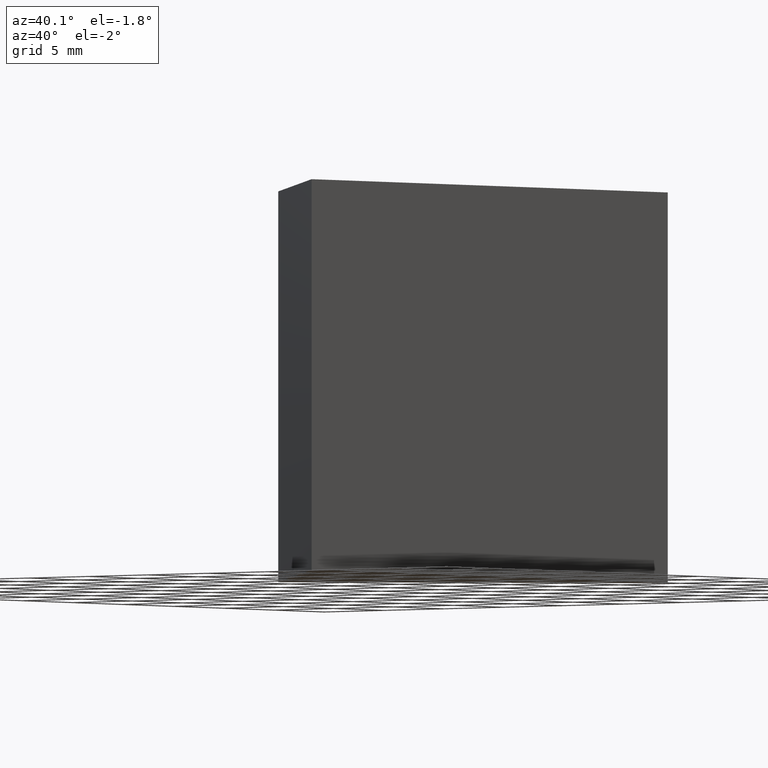
[diagram: clean part render]
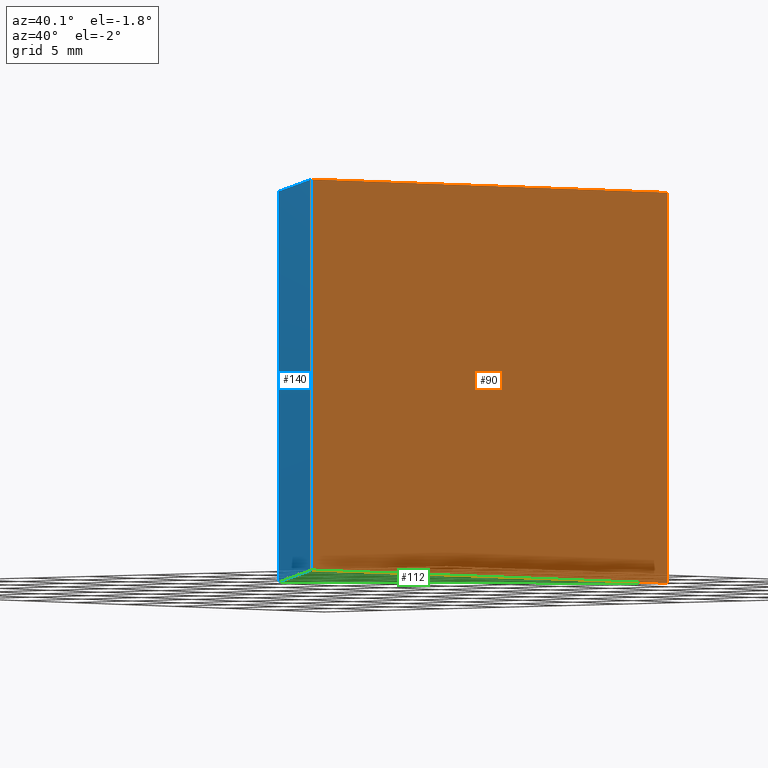
[diagram: same view with three faces highlighted in distinct colors, each labeled with its STEP entity id]
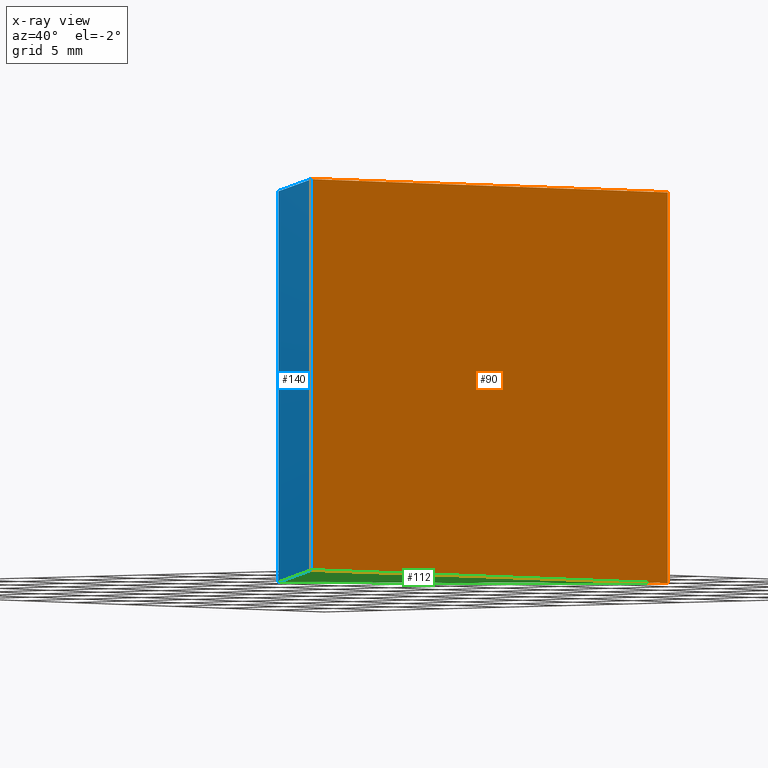
[diagram: x-ray of the same camera — body ghosted, the three highlighted faces saturated]
A machine part, auxiliary view with three faces highlighted in distinct colors.
The next image is the same camera in x-ray (body ghosted, the three faces saturated) — at least one of them is partly hidden behind the body in this view.
Their STEP definitions:

[orange] entity #90 — the highlighted planar face has unit normal (-1, 0, 0).
#9 = ORIENTED_EDGE ( 'NONE', *, *, #116, .F. ) ;
#15 = VECTOR ( 'NONE', #120, 1000.000000000000000 ) ;
#23 = VERTEX_POINT ( 'NONE', #31 ) ;
#26 = LINE ( 'NONE', #72, #113 ) ;
#27 = VERTEX_POINT ( 'NONE', #30 ) ;
#30 = CARTESIAN_POINT ( 'NONE',  ( 295.0610192926383200, 86.55613229383399700, 25.00000000000000000 ) ) ;
#31 = CARTESIAN_POINT ( 'NONE',  ( 295.0610192926383200, 86.55613229383399700, 0.0000000000000000000 ) ) ;
#35 = CARTESIAN_POINT ( 'NONE',  ( 295.0610192926382600, 51.20079323450661200, 25.00000000000000000 ) ) ;
#40 = ORIENTED_EDGE ( 'NONE', *, *, #104, .T. ) ;
#44 = EDGE_CURVE ( 'NONE', #160, #169, #88, .T. ) ;
#51 = LINE ( 'NONE', #85, #15 ) ;
#65 = VECTOR ( 'NONE', #130, 1000.000000000000000 ) ;
#72 = CARTESIAN_POINT ( 'NONE',  ( 295.0610192926383200, 86.55613229383399700, 25.00000000000000000 ) ) ;
#78 = EDGE_CURVE ( 'NONE', #27, #23, #26, .T. ) ;
#85 = CARTESIAN_POINT ( 'NONE',  ( 295.0610192926382600, 51.20079323450661200, 25.00000000000000000 ) ) ;
#86 = ORIENTED_EDGE ( 'NONE', *, *, #44, .T. ) ;
#88 = LINE ( 'NONE', #132, #65 ) ;
#90 = ADVANCED_FACE ( 'NONE', ( #157 ), #96, .F. ) ;
#94 = ORIENTED_EDGE ( 'NONE', *, *, #78, .F. ) ;
#96 = PLANE ( 'NONE',  #162 ) ;
#97 = DIRECTION ( 'NONE',  ( -1.570092458683774900E-015, -1.000000000000000000, 0.0000000000000000000 ) ) ;
#104 = EDGE_CURVE ( 'NONE', #169, #23, #155, .T. ) ;
#106 = CARTESIAN_POINT ( 'NONE',  ( 295.0610192926382600, 51.20079323450661200, 0.0000000000000000000 ) ) ;
#107 = DIRECTION ( 'NONE',  ( 1.570092458683774700E-015, 1.000000000000000000, 0.0000000000000000000 ) ) ;
#113 = VECTOR ( 'NONE', #135, 1000.000000000000000 ) ;
#116 = EDGE_CURVE ( 'NONE', #160, #27, #51, .T. ) ;
#119 = CARTESIAN_POINT ( 'NONE',  ( 295.0610192926382600, 51.20079323450661200, 25.00000000000000000 ) ) ;
#120 = DIRECTION ( 'NONE',  ( 1.570092458683774700E-015, 1.000000000000000000, 0.0000000000000000000 ) ) ;
#122 = EDGE_LOOP ( 'NONE', ( #40, #94, #9, #86 ) ) ;
#123 = CARTESIAN_POINT ( 'NONE',  ( 295.0610192926382600, 51.20079323450661200, 0.0000000000000000000 ) ) ;
#124 = VECTOR ( 'NONE', #107, 1000.000000000000000 ) ;
#130 = DIRECTION ( 'NONE',  ( -0.0000000000000000000, -0.0000000000000000000, -1.000000000000000000 ) ) ;
#132 = CARTESIAN_POINT ( 'NONE',  ( 295.0610192926382600, 51.20079323450661200, 25.00000000000000000 ) ) ;
#135 = DIRECTION ( 'NONE',  ( -0.0000000000000000000, -0.0000000000000000000, -1.000000000000000000 ) ) ;
#155 = LINE ( 'NONE', #106, #124 ) ;
#157 = FACE_OUTER_BOUND ( 'NONE', #122, .T. ) ;
#160 = VERTEX_POINT ( 'NONE', #35 ) ;
#162 = AXIS2_PLACEMENT_3D ( 'NONE', #119, #165, #97 ) ;
#165 = DIRECTION ( 'NONE',  ( -1.000000000000000000, 1.570092458683774900E-015, 0.0000000000000000000 ) ) ;
#169 = VERTEX_POINT ( 'NONE', #123 ) ;

[blue] entity #140 — the highlighted planar face has unit normal (0.7071, 0.7071, -0).
#1 = CARTESIAN_POINT ( 'NONE',  ( 277.3833497629746000, 68.87846276417030800, 0.0000000000000000000 ) ) ;
#2 = DIRECTION ( 'NONE',  ( -0.0000000000000000000, -0.0000000000000000000, -1.000000000000000000 ) ) ;
#3 = DIRECTION ( 'NONE',  ( 0.7071067811865465700, -0.7071067811865484600, 0.0000000000000000000 ) ) ;
#13 = ORIENTED_EDGE ( 'NONE', *, *, #141, .F. ) ;
#16 = VECTOR ( 'NONE', #117, 1000.000000000000100 ) ;
#19 = VECTOR ( 'NONE', #2, 1000.000000000000000 ) ;
#35 = CARTESIAN_POINT ( 'NONE',  ( 295.0610192926382600, 51.20079323450661200, 25.00000000000000000 ) ) ;
#44 = EDGE_CURVE ( 'NONE', #160, #169, #88, .T. ) ;
#45 = DIRECTION ( 'NONE',  ( -0.7071067811865465700, 0.7071067811865484600, 0.0000000000000000000 ) ) ;
#46 = CARTESIAN_POINT ( 'NONE',  ( 277.3833497629746000, 68.87846276417030800, 0.0000000000000000000 ) ) ;
#52 = AXIS2_PLACEMENT_3D ( 'NONE', #56, #161, #45 ) ;
#56 = CARTESIAN_POINT ( 'NONE',  ( 277.3833497629746000, 68.87846276417030800, 25.00000000000000000 ) ) ;
#58 = LINE ( 'NONE', #133, #19 ) ;
#65 = VECTOR ( 'NONE', #130, 1000.000000000000000 ) ;
#66 = EDGE_CURVE ( 'NONE', #69, #102, #58, .T. ) ;
#69 = VERTEX_POINT ( 'NONE', #71 ) ;
#71 = CARTESIAN_POINT ( 'NONE',  ( 277.3833497629746000, 68.87846276417030800, 25.00000000000000000 ) ) ;
#79 = EDGE_LOOP ( 'NONE', ( #137, #105, #13, #110 ) ) ;
#88 = LINE ( 'NONE', #132, #65 ) ;
#89 = LINE ( 'NONE', #150, #16 ) ;
#93 = LINE ( 'NONE', #1, #158 ) ;
#102 = VERTEX_POINT ( 'NONE', #46 ) ;
#105 = ORIENTED_EDGE ( 'NONE', *, *, #44, .F. ) ;
#110 = ORIENTED_EDGE ( 'NONE', *, *, #66, .T. ) ;
#117 = DIRECTION ( 'NONE',  ( 0.7071067811865465700, -0.7071067811865484600, 0.0000000000000000000 ) ) ;
#123 = CARTESIAN_POINT ( 'NONE',  ( 295.0610192926382600, 51.20079323450661200, 0.0000000000000000000 ) ) ;
#130 = DIRECTION ( 'NONE',  ( -0.0000000000000000000, -0.0000000000000000000, -1.000000000000000000 ) ) ;
#132 = CARTESIAN_POINT ( 'NONE',  ( 295.0610192926382600, 51.20079323450661200, 25.00000000000000000 ) ) ;
#133 = CARTESIAN_POINT ( 'NONE',  ( 277.3833497629746000, 68.87846276417030800, 25.00000000000000000 ) ) ;
#134 = PLANE ( 'NONE',  #52 ) ;
#137 = ORIENTED_EDGE ( 'NONE', *, *, #145, .T. ) ;
#140 = ADVANCED_FACE ( 'NONE', ( #147 ), #134, .F. ) ;
#141 = EDGE_CURVE ( 'NONE', #69, #160, #89, .T. ) ;
#145 = EDGE_CURVE ( 'NONE', #102, #169, #93, .T. ) ;
#147 = FACE_OUTER_BOUND ( 'NONE', #79, .T. ) ;
#150 = CARTESIAN_POINT ( 'NONE',  ( 277.3833497629746000, 68.87846276417030800, 25.00000000000000000 ) ) ;
#158 = VECTOR ( 'NONE', #3, 1000.000000000000100 ) ;
#160 = VERTEX_POINT ( 'NONE', #35 ) ;
#161 = DIRECTION ( 'NONE',  ( 0.7071067811865484600, 0.7071067811865465700, -0.0000000000000000000 ) ) ;
#169 = VERTEX_POINT ( 'NONE', #123 ) ;

[green] entity #112 — the highlighted planar face has unit normal (-0, 0, 1).
#1 = CARTESIAN_POINT ( 'NONE',  ( 277.3833497629746000, 68.87846276417030800, 0.0000000000000000000 ) ) ;
#3 = DIRECTION ( 'NONE',  ( 0.7071067811865465700, -0.7071067811865484600, 0.0000000000000000000 ) ) ;
#6 = ORIENTED_EDGE ( 'NONE', *, *, #159, .F. ) ;
#18 = DIRECTION ( 'NONE',  ( 1.000000000000000000, 0.0000000000000000000, 0.0000000000000000000 ) ) ;
#23 = VERTEX_POINT ( 'NONE', #31 ) ;
#25 = ORIENTED_EDGE ( 'NONE', *, *, #104, .F. ) ;
#31 = CARTESIAN_POINT ( 'NONE',  ( 295.0610192926383200, 86.55613229383399700, 0.0000000000000000000 ) ) ;
#46 = CARTESIAN_POINT ( 'NONE',  ( 277.3833497629746000, 68.87846276417030800, 0.0000000000000000000 ) ) ;
#47 = DIRECTION ( 'NONE',  ( -0.7071067811865481300, -0.7071067811865470200, -0.0000000000000000000 ) ) ;
#73 = AXIS2_PLACEMENT_3D ( 'NONE', #83, #128, #18 ) ;
#83 = CARTESIAN_POINT ( 'NONE',  ( 0.0000000000000000000, 0.0000000000000000000, 0.0000000000000000000 ) ) ;
#92 = LINE ( 'NONE', #131, #103 ) ;
#93 = LINE ( 'NONE', #1, #158 ) ;
#101 = ORIENTED_EDGE ( 'NONE', *, *, #145, .F. ) ;
#102 = VERTEX_POINT ( 'NONE', #46 ) ;
#103 = VECTOR ( 'NONE', #47, 1000.000000000000000 ) ;
#104 = EDGE_CURVE ( 'NONE', #169, #23, #155, .T. ) ;
#106 = CARTESIAN_POINT ( 'NONE',  ( 295.0610192926382600, 51.20079323450661200, 0.0000000000000000000 ) ) ;
#107 = DIRECTION ( 'NONE',  ( 1.570092458683774700E-015, 1.000000000000000000, 0.0000000000000000000 ) ) ;
#112 = ADVANCED_FACE ( 'NONE', ( #163 ), #118, .F. ) ;
#118 = PLANE ( 'NONE',  #73 ) ;
#123 = CARTESIAN_POINT ( 'NONE',  ( 295.0610192926382600, 51.20079323450661200, 0.0000000000000000000 ) ) ;
#124 = VECTOR ( 'NONE', #107, 1000.000000000000000 ) ;
#127 = EDGE_LOOP ( 'NONE', ( #101, #6, #25 ) ) ;
#128 = DIRECTION ( 'NONE',  ( -0.0000000000000000000, 0.0000000000000000000, 1.000000000000000000 ) ) ;
#131 = CARTESIAN_POINT ( 'NONE',  ( 277.3833497629746000, 68.87846276417030800, 0.0000000000000000000 ) ) ;
#145 = EDGE_CURVE ( 'NONE', #102, #169, #93, .T. ) ;
#155 = LINE ( 'NONE', #106, #124 ) ;
#158 = VECTOR ( 'NONE', #3, 1000.000000000000100 ) ;
#159 = EDGE_CURVE ( 'NONE', #23, #102, #92, .T. ) ;
#163 = FACE_OUTER_BOUND ( 'NONE', #127, .T. ) ;
#169 = VERTEX_POINT ( 'NONE', #123 ) ;